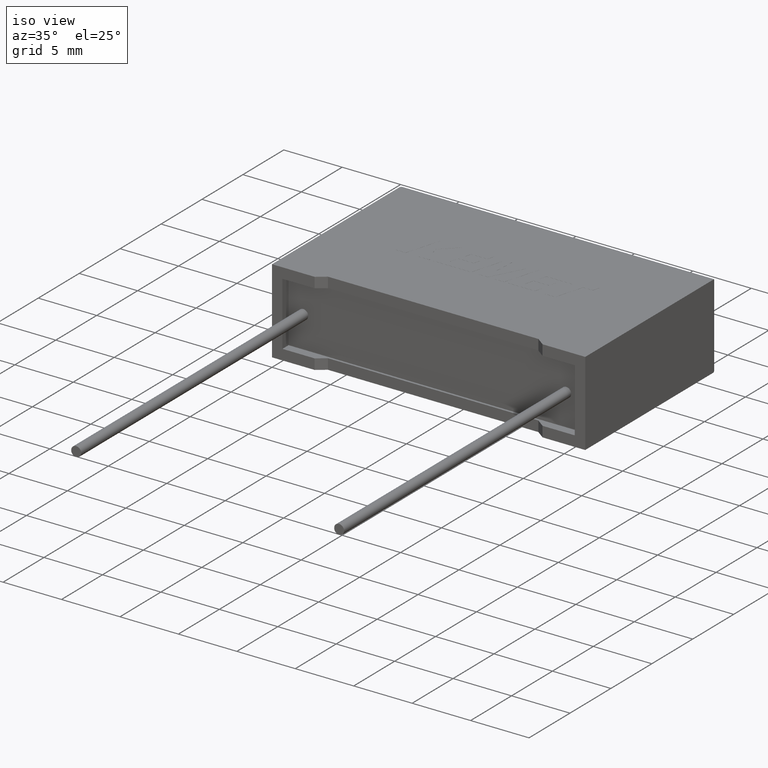
[diagram: clean part render]
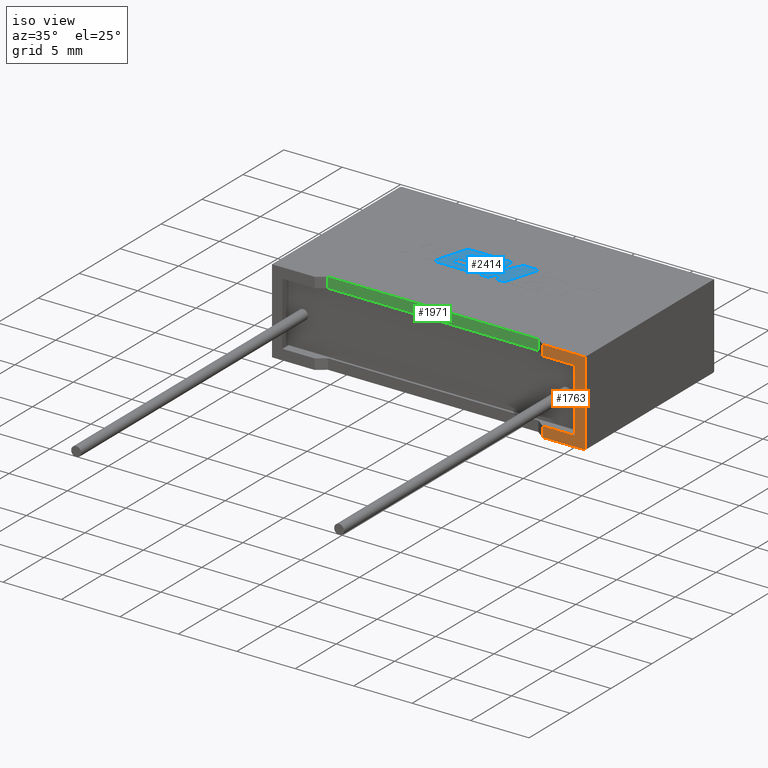
[diagram: same view with three faces highlighted in distinct colors, each labeled with its STEP entity id]
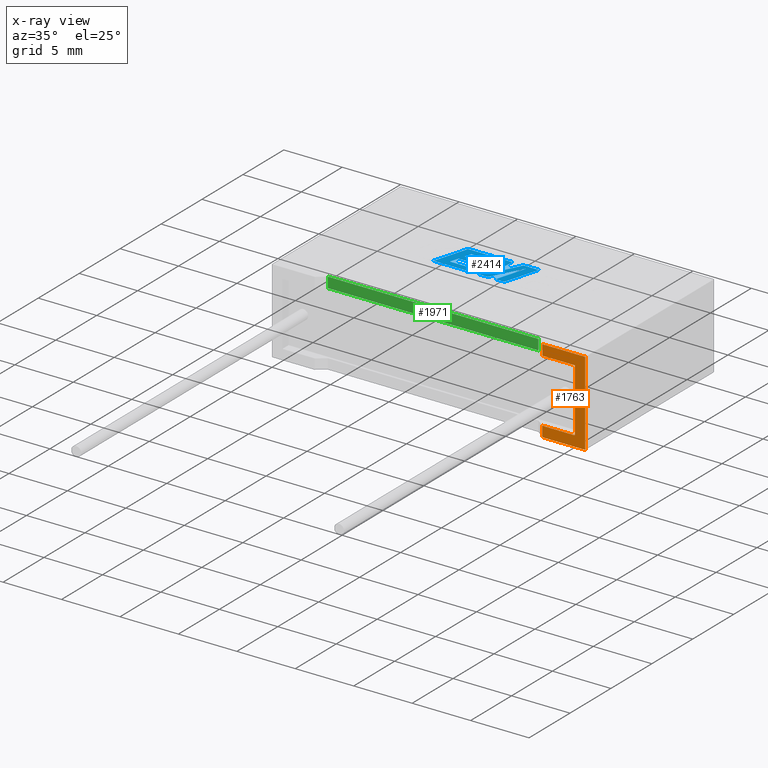
[diagram: x-ray of the same camera — body ghosted, the three highlighted faces saturated]
A machine part, iso view with three faces highlighted in distinct colors.
The next image is the same camera in x-ray (body ghosted, the three faces saturated) — at least one of them is partly hidden behind the body in this view.
Their STEP definitions:

[orange] entity #1763 — the highlighted planar face has unit normal (0, 1, 0).
#8 = VERTEX_POINT ( 'NONE', #1206 ) ;
#26 = EDGE_CURVE ( 'NONE', #1050, #2748, #1887, .T. ) ;
#30 = ORIENTED_EDGE ( 'NONE', *, *, #637, .F. ) ;
#57 = DIRECTION ( 'NONE',  ( 0.000000000000000000, -0.000000000000000000, 1.000000000000000000 ) ) ;
#79 = VERTEX_POINT ( 'NONE', #1142 ) ;
#97 = ORIENTED_EDGE ( 'NONE', *, *, #1270, .F. ) ;
#144 = DIRECTION ( 'NONE',  ( -0.000000000000000000, -0.000000000000000000, 1.000000000000000000 ) ) ;
#149 = DIRECTION ( 'NONE',  ( -1.000000000000000000, 0.000000000000000000, -1.387039016726486021E-16 ) ) ;
#192 = VERTEX_POINT ( 'NONE', #2314 ) ;
#218 = LINE ( 'NONE', #2124, #976 ) ;
#257 = CARTESIAN_POINT ( 'NONE',  ( 26.80000000000000071, 0.000000000000000000, 7.200000000000000178 ) ) ;
#387 = CARTESIAN_POINT ( 'NONE',  ( 23.15000000000000213, 2.234980408443919708E-16, 0.000000000000000000 ) ) ;
#392 = LINE ( 'NONE', #1340, #2062 ) ;
#403 = DIRECTION ( 'NONE',  ( 0.000000000000000000, 0.000000000000000000, 1.000000000000000000 ) ) ;
#488 = FACE_OUTER_BOUND ( 'NONE', #2459, .T. ) ;
#513 = LINE ( 'NONE', #1962, #1749 ) ;
#542 = LINE ( 'NONE', #1722, #2899 ) ;
#547 = EDGE_CURVE ( 'NONE', #192, #8, #542, .T. ) ;
#637 = EDGE_CURVE ( 'NONE', #1050, #79, #1539, .T. ) ;
#774 = CARTESIAN_POINT ( 'NONE',  ( 0.000000000000000000, 0.000000000000000000, 7.200000000000000178 ) ) ;
#845 = CARTESIAN_POINT ( 'NONE',  ( 26.80000000000000071, 0.000000000000000000, 7.200000000000000178 ) ) ;
#908 = ORIENTED_EDGE ( 'NONE', *, *, #2807, .F. ) ;
#976 = VECTOR ( 'NONE', #3060, 1000.000000000000000 ) ;
#1020 = DIRECTION ( 'NONE',  ( -0.000000000000000000, -0.000000000000000000, 1.000000000000000000 ) ) ;
#1050 = VERTEX_POINT ( 'NONE', #1491 ) ;
#1108 = VECTOR ( 'NONE', #2218, 1000.000000000000000 ) ;
#1142 = CARTESIAN_POINT ( 'NONE',  ( 23.15000000000000213, 2.234980408443919708E-16, 0.8933332440000000263 ) ) ;
#1202 = ORIENTED_EDGE ( 'NONE', *, *, #547, .F. ) ;
#1206 = CARTESIAN_POINT ( 'NONE',  ( 23.15000000000000213, 2.234980408443919708E-16, 7.200000000000000178 ) ) ;
#1270 = EDGE_CURVE ( 'NONE', #8, #2122, #218, .T. ) ;
#1292 = ORIENTED_EDGE ( 'NONE', *, *, #1551, .F. ) ;
#1297 = VERTEX_POINT ( 'NONE', #1885 ) ;
#1340 = CARTESIAN_POINT ( 'NONE',  ( 25.90666675599999991, 0.000000000000000000, 0.8933332440000000263 ) ) ;
#1432 = PLANE ( 'NONE',  #2112 ) ;
#1491 = CARTESIAN_POINT ( 'NONE',  ( 23.15000000000000213, 2.234980408443919708E-16, 0.000000000000000000 ) ) ;
#1539 = LINE ( 'NONE', #387, #1612 ) ;
#1551 = EDGE_CURVE ( 'NONE', #2291, #192, #2512, .T. ) ;
#1574 = VECTOR ( 'NONE', #149, 1000.000000000000000 ) ;
#1612 = VECTOR ( 'NONE', #144, 1000.000000000000000 ) ;
#1651 = EDGE_CURVE ( 'NONE', #1297, #2291, #392, .T. ) ;
#1658 = VECTOR ( 'NONE', #2603, 1000.000000000000000 ) ;
#1722 = CARTESIAN_POINT ( 'NONE',  ( 23.15000000000000213, 2.234980408443919708E-16, 0.000000000000000000 ) ) ;
#1735 = ORIENTED_EDGE ( 'NONE', *, *, #26, .T. ) ;
#1749 = VECTOR ( 'NONE', #2402, 1000.000000000000000 ) ;
#1763 = ADVANCED_FACE ( 'NONE', ( #488 ), #1432, .F. ) ;
#1790 = CARTESIAN_POINT ( 'NONE',  ( 25.90666675599999991, 0.000000000000000000, 6.306666755999999374 ) ) ;
#1838 = CARTESIAN_POINT ( 'NONE',  ( 25.90666675599999991, 0.000000000000000000, 6.306666755999999374 ) ) ;
#1885 = CARTESIAN_POINT ( 'NONE',  ( 25.90666675599999991, 0.000000000000000000, 0.8933332440000000263 ) ) ;
#1887 = LINE ( 'NONE', #2300, #1658 ) ;
#1940 = ORIENTED_EDGE ( 'NONE', *, *, #1651, .F. ) ;
#1962 = CARTESIAN_POINT ( 'NONE',  ( 0.8933332440000000263, 0.000000000000000000, 0.8933332440000000263 ) ) ;
#2062 = VECTOR ( 'NONE', #403, 1000.000000000000000 ) ;
#2112 = AXIS2_PLACEMENT_3D ( 'NONE', #774, #2916, #57 ) ;
#2115 = EDGE_CURVE ( 'NONE', #79, #1297, #513, .T. ) ;
#2122 = VERTEX_POINT ( 'NONE', #257 ) ;
#2124 = CARTESIAN_POINT ( 'NONE',  ( 0.000000000000000000, 0.000000000000000000, 7.200000000000000178 ) ) ;
#2218 = DIRECTION ( 'NONE',  ( -0.000000000000000000, -0.000000000000000000, -1.000000000000000000 ) ) ;
#2251 = CARTESIAN_POINT ( 'NONE',  ( 26.80000000000000071, 0.000000000000000000, 0.000000000000000000 ) ) ;
#2257 = ORIENTED_EDGE ( 'NONE', *, *, #2115, .F. ) ;
#2291 = VERTEX_POINT ( 'NONE', #1838 ) ;
#2300 = CARTESIAN_POINT ( 'NONE',  ( 0.000000000000000000, 0.000000000000000000, 0.000000000000000000 ) ) ;
#2314 = CARTESIAN_POINT ( 'NONE',  ( 23.15000000000000213, 2.234980408443919708E-16, 6.306666755999999374 ) ) ;
#2402 = DIRECTION ( 'NONE',  ( 1.000000000000000000, 0.000000000000000000, 0.000000000000000000 ) ) ;
#2459 = EDGE_LOOP ( 'NONE', ( #30, #1735, #908, #97, #1202, #1292, #1940, #2257 ) ) ;
#2512 = LINE ( 'NONE', #1790, #1574 ) ;
#2603 = DIRECTION ( 'NONE',  ( 1.000000000000000000, 0.000000000000000000, 0.000000000000000000 ) ) ;
#2748 = VERTEX_POINT ( 'NONE', #2251 ) ;
#2807 = EDGE_CURVE ( 'NONE', #2122, #2748, #2945, .T. ) ;
#2899 = VECTOR ( 'NONE', #1020, 1000.000000000000000 ) ;
#2916 = DIRECTION ( 'NONE',  ( 0.000000000000000000, 1.000000000000000000, 0.000000000000000000 ) ) ;
#2945 = LINE ( 'NONE', #845, #1108 ) ;
#3060 = DIRECTION ( 'NONE',  ( 1.000000000000000000, 0.000000000000000000, 0.000000000000000000 ) ) ;

[blue] entity #2414 — the highlighted planar face has unit normal (0, 0, -1).
#3 = DIRECTION ( 'NONE',  ( 0.2746459304916892830, 0.9615454294334481178, 0.000000000000000000 ) ) ;
#23 = ORIENTED_EDGE ( 'NONE', *, *, #1012, .T. ) ;
#48 = VECTOR ( 'NONE', #1555, 1000.000000000000000 ) ;
#84 = ORIENTED_EDGE ( 'NONE', *, *, #243, .T. ) ;
#91 = VECTOR ( 'NONE', #1664, 1000.000000000000227 ) ;
#98 = LINE ( 'NONE', #1277, #1817 ) ;
#111 = DIRECTION ( 'NONE',  ( -1.000000000000000000, 0.000000000000000000, 0.000000000000000000 ) ) ;
#116 = DIRECTION ( 'NONE',  ( 0.000000000000000000, 0.000000000000000000, -1.000000000000000000 ) ) ;
#143 = VECTOR ( 'NONE', #3022, 1000.000000000000000 ) ;
#145 = VERTEX_POINT ( 'NONE', #689 ) ;
#176 = VERTEX_POINT ( 'NONE', #1917 ) ;
#196 = DIRECTION ( 'NONE',  ( -1.000000000000000000, 0.000000000000000000, 0.000000000000000000 ) ) ;
#203 = VERTEX_POINT ( 'NONE', #1530 ) ;
#216 = ORIENTED_EDGE ( 'NONE', *, *, #1556, .T. ) ;
#223 = LINE ( 'NONE', #1420, #377 ) ;
#233 = DIRECTION ( 'NONE',  ( -1.000000000000000000, 0.000000000000000000, 0.000000000000000000 ) ) ;
#243 = EDGE_CURVE ( 'NONE', #1690, #2970, #2304, .T. ) ;
#249 = EDGE_CURVE ( 'NONE', #2492, #1351, #2319, .T. ) ;
#296 = VERTEX_POINT ( 'NONE', #2819 ) ;
#325 = VECTOR ( 'NONE', #2838, 1000.000000000000114 ) ;
#329 = ORIENTED_EDGE ( 'NONE', *, *, #1714, .T. ) ;
#341 = ORIENTED_EDGE ( 'NONE', *, *, #1613, .T. ) ;
#353 = DIRECTION ( 'NONE',  ( -0.2762517575166416051, -0.9610853065513833560, 0.000000000000000000 ) ) ;
#366 = EDGE_CURVE ( 'NONE', #2488, #2178, #1400, .T. ) ;
#375 = CARTESIAN_POINT ( 'NONE',  ( 12.81255791745697081, 6.927829999999906896, 7.204999999999999183 ) ) ;
#377 = VECTOR ( 'NONE', #2064, 1000.000000000000227 ) ;
#378 = EDGE_CURVE ( 'NONE', #1764, #609, #223, .T. ) ;
#390 = LINE ( 'NONE', #2496, #2428 ) ;
#396 = EDGE_CURVE ( 'NONE', #1656, #2693, #2315, .T. ) ;
#436 = ORIENTED_EDGE ( 'NONE', *, *, #2565, .T. ) ;
#469 = ORIENTED_EDGE ( 'NONE', *, *, #1939, .T. ) ;
#471 = CARTESIAN_POINT ( 'NONE',  ( 13.62036788893125916, 9.929655146294752655, 7.204999999999999183 ) ) ;
#476 = EDGE_CURVE ( 'NONE', #771, #296, #2604, .T. ) ;
#518 = LINE ( 'NONE', #2897, #2551 ) ;
#523 = VERTEX_POINT ( 'NONE', #2875 ) ;
#525 = LINE ( 'NONE', #1120, #48 ) ;
#575 = VERTEX_POINT ( 'NONE', #1364 ) ;
#577 = DIRECTION ( 'NONE',  ( -1.000000000000000000, 0.000000000000000000, 0.000000000000000000 ) ) ;
#609 = VERTEX_POINT ( 'NONE', #2942 ) ;
#612 = CARTESIAN_POINT ( 'NONE',  ( 8.961130512319890329, 6.927829999999906008, 7.204999999999999183 ) ) ;
#634 = CARTESIAN_POINT ( 'NONE',  ( 13.50492627752647579, 7.785112693060707301, 7.204999999999999183 ) ) ;
#658 = CARTESIAN_POINT ( 'NONE',  ( 11.63858746193968230, 8.799934140488566925, 7.204999999999999183 ) ) ;
#662 = VERTEX_POINT ( 'NONE', #612 ) ;
#687 = VERTEX_POINT ( 'NONE', #940 ) ;
#689 = CARTESIAN_POINT ( 'NONE',  ( 11.64331543556821558, 7.498929054996248844, 7.204999999999999183 ) ) ;
#717 = CARTESIAN_POINT ( 'NONE',  ( 10.35016900896583358, 8.799934140488566925, 7.204999999999999183 ) ) ;
#771 = VERTEX_POINT ( 'NONE', #2418 ) ;
#842 = EDGE_CURVE ( 'NONE', #609, #687, #98, .T. ) ;
#847 = DIRECTION ( 'NONE',  ( 1.000000000000000000, 0.000000000000000000, 0.000000000000000000 ) ) ;
#859 = LINE ( 'NONE', #1815, #2719 ) ;
#862 = CARTESIAN_POINT ( 'NONE',  ( 9.824934949208618207, 9.929655146294752655, 7.204999999999999183 ) ) ;
#882 = LINE ( 'NONE', #2704, #952 ) ;
#926 = EDGE_CURVE ( 'NONE', #523, #145, #2302, .T. ) ;
#940 = CARTESIAN_POINT ( 'NONE',  ( 12.81255791745697081, 6.927829999999906896, 7.204999999999999183 ) ) ;
#952 = VECTOR ( 'NONE', #2500, 1000.000000000000227 ) ;
#959 = CARTESIAN_POINT ( 'NONE',  ( 8.961130512319890329, 6.927829999999906008, 7.204999999999999183 ) ) ;
#964 = CARTESIAN_POINT ( 'NONE',  ( 15.03040653937304683, 9.613145606098944640, 7.204999999999999183 ) ) ;
#967 = DIRECTION ( 'NONE',  ( 1.000000000000000000, 0.000000000000000000, 0.000000000000000000 ) ) ;
#980 = VECTOR ( 'NONE', #847, 1000.000000000000000 ) ;
#992 = CARTESIAN_POINT ( 'NONE',  ( 12.19501884341827846, 6.927829999999906896, 7.204999999999999183 ) ) ;
#1012 = EDGE_CURVE ( 'NONE', #176, #1656, #2399, .T. ) ;
#1024 = CARTESIAN_POINT ( 'NONE',  ( 13.62036788893125916, 9.929655146294752655, 7.204999999999999183 ) ) ;
#1037 = LINE ( 'NONE', #2928, #1333 ) ;
#1045 = ORIENTED_EDGE ( 'NONE', *, *, #842, .T. ) ;
#1072 = ORIENTED_EDGE ( 'NONE', *, *, #2854, .T. ) ;
#1120 = CARTESIAN_POINT ( 'NONE',  ( 11.64331543556821558, 7.498929054996248844, 7.204999999999999183 ) ) ;
#1144 = CARTESIAN_POINT ( 'NONE',  ( 13.50492627752647579, 7.785112693060707301, 7.204999999999999183 ) ) ;
#1263 = ORIENTED_EDGE ( 'NONE', *, *, #476, .T. ) ;
#1277 = CARTESIAN_POINT ( 'NONE',  ( 12.96235618644490373, 9.600276025354885334, 7.204999999999999183 ) ) ;
#1278 = DIRECTION ( 'NONE',  ( 0.2740217765954066076, 0.9617234872620595842, 0.000000000000000000 ) ) ;
#1285 = CARTESIAN_POINT ( 'NONE',  ( -0.3258222201975285448, -2.788102143479581407, 7.204999999999999183 ) ) ;
#1323 = CARTESIAN_POINT ( 'NONE',  ( 12.04258276915566839, 9.929655146294752655, 7.204999999999999183 ) ) ;
#1333 = VECTOR ( 'NONE', #2419, 1000.000000000000000 ) ;
#1351 = VERTEX_POINT ( 'NONE', #717 ) ;
#1363 = EDGE_CURVE ( 'NONE', #2970, #1848, #2313, .T. ) ;
#1364 = CARTESIAN_POINT ( 'NONE',  ( 10.51263605673751833, 9.358273143074805844, 7.204999999999999183 ) ) ;
#1381 = ORIENTED_EDGE ( 'NONE', *, *, #396, .T. ) ;
#1400 = LINE ( 'NONE', #2334, #2842 ) ;
#1406 = CARTESIAN_POINT ( 'NONE',  ( 9.979269517209649720, 7.498929054996248844, 7.204999999999999183 ) ) ;
#1410 = CARTESIAN_POINT ( 'NONE',  ( 15.88512924842837215, 9.929655146294752655, 7.204999999999999183 ) ) ;
#1420 = CARTESIAN_POINT ( 'NONE',  ( 12.19501884341827846, 6.927829999999906896, 7.204999999999999183 ) ) ;
#1422 = FACE_OUTER_BOUND ( 'NONE', #2696, .T. ) ;
#1450 = LINE ( 'NONE', #471, #2629 ) ;
#1459 = VECTOR ( 'NONE', #111, 1000.000000000000000 ) ;
#1471 = ORIENTED_EDGE ( 'NONE', *, *, #1936, .T. ) ;
#1528 = CARTESIAN_POINT ( 'NONE',  ( 14.25927221365804698, 6.927829999999906896, 7.204999999999999183 ) ) ;
#1530 = CARTESIAN_POINT ( 'NONE',  ( 15.02208238501568971, 6.927829999999906896, 7.204999999999999183 ) ) ;
#1537 = ORIENTED_EDGE ( 'NONE', *, *, #1795, .T. ) ;
#1538 = EDGE_CURVE ( 'NONE', #145, #2997, #525, .T. ) ;
#1540 = VERTEX_POINT ( 'NONE', #862 ) ;
#1555 = DIRECTION ( 'NONE',  ( -1.000000000000000000, 0.000000000000000000, 0.000000000000000000 ) ) ;
#1556 = EDGE_CURVE ( 'NONE', #687, #1690, #2484, .T. ) ;
#1590 = LINE ( 'NONE', #1857, #1598 ) ;
#1598 = VECTOR ( 'NONE', #3, 1000.000000000000114 ) ;
#1613 = EDGE_CURVE ( 'NONE', #1848, #203, #2263, .T. ) ;
#1618 = VECTOR ( 'NONE', #2632, 999.9999999999998863 ) ;
#1620 = VECTOR ( 'NONE', #2745, 1000.000000000000000 ) ;
#1654 = CARTESIAN_POINT ( 'NONE',  ( 10.35016900896583358, 8.799934140488566925, 7.204999999999999183 ) ) ;
#1656 = VERTEX_POINT ( 'NONE', #634 ) ;
#1664 = DIRECTION ( 'NONE',  ( -0.2760118818968580467, -0.9611542233438683525, 0.000000000000000000 ) ) ;
#1690 = VERTEX_POINT ( 'NONE', #2002 ) ;
#1714 = EDGE_CURVE ( 'NONE', #662, #1764, #2071, .T. ) ;
#1764 = VERTEX_POINT ( 'NONE', #992 ) ;
#1771 = ORIENTED_EDGE ( 'NONE', *, *, #249, .T. ) ;
#1795 = EDGE_CURVE ( 'NONE', #2997, #771, #518, .T. ) ;
#1807 = EDGE_CURVE ( 'NONE', #2597, #176, #1037, .T. ) ;
#1815 = CARTESIAN_POINT ( 'NONE',  ( 15.02208238501568971, 6.927829999999906896, 7.204999999999999183 ) ) ;
#1817 = VECTOR ( 'NONE', #3029, 1000.000000000000114 ) ;
#1824 = ORIENTED_EDGE ( 'NONE', *, *, #2879, .T. ) ;
#1837 = CARTESIAN_POINT ( 'NONE',  ( 12.34199675988504730, 9.929655146294752655, 7.204999999999999183 ) ) ;
#1848 = VERTEX_POINT ( 'NONE', #1528 ) ;
#1857 = CARTESIAN_POINT ( 'NONE',  ( 11.48008168937758633, 8.244999644015067020, 7.204999999999999183 ) ) ;
#1859 = DIRECTION ( 'NONE',  ( 0.2793947940878294123, 0.9601763114327593884, 0.000000000000000000 ) ) ;
#1917 = CARTESIAN_POINT ( 'NONE',  ( 14.56854915550671947, 9.929655146294752655, 7.204999999999999183 ) ) ;
#1923 = CARTESIAN_POINT ( 'NONE',  ( 12.04258276915566839, 9.929655146294752655, 7.204999999999999183 ) ) ;
#1936 = EDGE_CURVE ( 'NONE', #203, #2597, #859, .T. ) ;
#1939 = EDGE_CURVE ( 'NONE', #1351, #575, #2539, .T. ) ;
#1974 = PLANE ( 'NONE',  #2273 ) ;
#2002 = CARTESIAN_POINT ( 'NONE',  ( 13.61281765606143246, 6.927829999999906896, 7.204999999999999183 ) ) ;
#2054 = DIRECTION ( 'NONE',  ( 1.000000000000000000, 0.000000000000000000, 0.000000000000000000 ) ) ;
#2064 = DIRECTION ( 'NONE',  ( 0.2759782365590697228, 0.9611638845408966292, 0.000000000000000000 ) ) ;
#2071 = LINE ( 'NONE', #959, #143 ) ;
#2078 = DIRECTION ( 'NONE',  ( 0.05375259206908576670, 0.9985542843760946141, 0.000000000000000000 ) ) ;
#2093 = ORIENTED_EDGE ( 'NONE', *, *, #378, .T. ) ;
#2107 = VECTOR ( 'NONE', #353, 1000.000000000000114 ) ;
#2178 = VERTEX_POINT ( 'NONE', #1923 ) ;
#2226 = VECTOR ( 'NONE', #1859, 1000.000000000000114 ) ;
#2263 = LINE ( 'NONE', #2731, #1620 ) ;
#2273 = AXIS2_PLACEMENT_3D ( 'NONE', #1285, #116, #577 ) ;
#2281 = DIRECTION ( 'NONE',  ( 0.2732148821746286371, 0.9619530280415482526, 0.000000000000000000 ) ) ;
#2288 = CARTESIAN_POINT ( 'NONE',  ( 15.03040653937304683, 9.613145606098944640, 7.204999999999999183 ) ) ;
#2293 = CARTESIAN_POINT ( 'NONE',  ( 11.63858746193968230, 8.799934140488566925, 7.204999999999999183 ) ) ;
#2295 = EDGE_CURVE ( 'NONE', #296, #2492, #1590, .T. ) ;
#2302 = LINE ( 'NONE', #1837, #2107 ) ;
#2304 = LINE ( 'NONE', #2768, #325 ) ;
#2313 = LINE ( 'NONE', #964, #91 ) ;
#2315 = LINE ( 'NONE', #1144, #2736 ) ;
#2319 = LINE ( 'NONE', #658, #2640 ) ;
#2334 = CARTESIAN_POINT ( 'NONE',  ( 11.88029826862837446, 9.358273143074805844, 7.204999999999999183 ) ) ;
#2365 = CARTESIAN_POINT ( 'NONE',  ( 10.19184578364829008, 8.244999644015067020, 7.204999999999999183 ) ) ;
#2399 = LINE ( 'NONE', #2648, #1618 ) ;
#2414 = ADVANCED_FACE ( 'NONE', ( #1422 ), #1974, .F. ) ;
#2418 = CARTESIAN_POINT ( 'NONE',  ( 10.19184578364829008, 8.244999644015067020, 7.204999999999999183 ) ) ;
#2419 = DIRECTION ( 'NONE',  ( -1.000000000000000000, 0.000000000000000000, 0.000000000000000000 ) ) ;
#2428 = VECTOR ( 'NONE', #2054, 1000.000000000000000 ) ;
#2447 = ORIENTED_EDGE ( 'NONE', *, *, #2523, .T. ) ;
#2484 = LINE ( 'NONE', #375, #980 ) ;
#2488 = VERTEX_POINT ( 'NONE', #2758 ) ;
#2492 = VERTEX_POINT ( 'NONE', #2293 ) ;
#2496 = CARTESIAN_POINT ( 'NONE',  ( 10.51263605673751833, 9.358273143074805844, 7.204999999999999183 ) ) ;
#2500 = DIRECTION ( 'NONE',  ( -0.2765379750249962743, -0.9610029908221277006, 0.000000000000000000 ) ) ;
#2523 = EDGE_CURVE ( 'NONE', #1540, #662, #882, .T. ) ;
#2539 = LINE ( 'NONE', #1654, #2226 ) ;
#2551 = VECTOR ( 'NONE', #1278, 1000.000000000000227 ) ;
#2562 = ORIENTED_EDGE ( 'NONE', *, *, #926, .T. ) ;
#2565 = EDGE_CURVE ( 'NONE', #2693, #523, #1450, .T. ) ;
#2572 = DIRECTION ( 'NONE',  ( 0.2763139702539113562, 0.9610674221107073922, 0.000000000000000000 ) ) ;
#2597 = VERTEX_POINT ( 'NONE', #1410 ) ;
#2604 = LINE ( 'NONE', #2365, #3002 ) ;
#2629 = VECTOR ( 'NONE', #233, 1000.000000000000000 ) ;
#2632 = DIRECTION ( 'NONE',  ( -0.4443210308329519354, -0.8958676361826802825, 0.000000000000000000 ) ) ;
#2640 = VECTOR ( 'NONE', #196, 1000.000000000000000 ) ;
#2642 = ORIENTED_EDGE ( 'NONE', *, *, #2295, .T. ) ;
#2648 = CARTESIAN_POINT ( 'NONE',  ( 14.56854915550671947, 9.929655146294752655, 7.204999999999999183 ) ) ;
#2676 = ORIENTED_EDGE ( 'NONE', *, *, #366, .T. ) ;
#2693 = VERTEX_POINT ( 'NONE', #1024 ) ;
#2696 = EDGE_LOOP ( 'NONE', ( #2759, #23, #1381, #436, #2562, #3020, #1537, #1263, #2642, #1771, #469, #1824, #2676, #1072, #2447, #329, #2093, #1045, #216, #84, #2909, #341, #1471 ) ) ;
#2704 = CARTESIAN_POINT ( 'NONE',  ( 9.824934949208618207, 9.929655146294752655, 7.204999999999999183 ) ) ;
#2719 = VECTOR ( 'NONE', #2572, 1000.000000000000000 ) ;
#2731 = CARTESIAN_POINT ( 'NONE',  ( 14.25927221365804698, 6.927829999999906896, 7.204999999999999183 ) ) ;
#2736 = VECTOR ( 'NONE', #2078, 1000.000000000000000 ) ;
#2741 = LINE ( 'NONE', #1323, #1459 ) ;
#2745 = DIRECTION ( 'NONE',  ( 1.000000000000000000, 0.000000000000000000, 0.000000000000000000 ) ) ;
#2758 = CARTESIAN_POINT ( 'NONE',  ( 11.88029826862837446, 9.358273143074805844, 7.204999999999999183 ) ) ;
#2759 = ORIENTED_EDGE ( 'NONE', *, *, #1807, .T. ) ;
#2768 = CARTESIAN_POINT ( 'NONE',  ( 13.61281765606143246, 6.927829999999906896, 7.204999999999999183 ) ) ;
#2819 = CARTESIAN_POINT ( 'NONE',  ( 11.48008168937758633, 8.244999644015067020, 7.204999999999999183 ) ) ;
#2838 = DIRECTION ( 'NONE',  ( 0.4668459304955080991, 0.8843386665637680277, 0.000000000000000000 ) ) ;
#2842 = VECTOR ( 'NONE', #2281, 1000.000000000000114 ) ;
#2854 = EDGE_CURVE ( 'NONE', #2178, #1540, #2741, .T. ) ;
#2875 = CARTESIAN_POINT ( 'NONE',  ( 12.34199675988504730, 9.929655146294752655, 7.204999999999999183 ) ) ;
#2879 = EDGE_CURVE ( 'NONE', #575, #2488, #390, .T. ) ;
#2897 = CARTESIAN_POINT ( 'NONE',  ( 9.979269517209649720, 7.498929054996248844, 7.204999999999999183 ) ) ;
#2909 = ORIENTED_EDGE ( 'NONE', *, *, #1363, .T. ) ;
#2928 = CARTESIAN_POINT ( 'NONE',  ( 15.88512924842837215, 9.929655146294752655, 7.204999999999999183 ) ) ;
#2942 = CARTESIAN_POINT ( 'NONE',  ( 12.96235618644490373, 9.600276025354885334, 7.204999999999999183 ) ) ;
#2970 = VERTEX_POINT ( 'NONE', #2288 ) ;
#2997 = VERTEX_POINT ( 'NONE', #1406 ) ;
#3002 = VECTOR ( 'NONE', #967, 1000.000000000000000 ) ;
#3020 = ORIENTED_EDGE ( 'NONE', *, *, #1538, .T. ) ;
#3022 = DIRECTION ( 'NONE',  ( 1.000000000000000000, 4.783739767952858963E-16, 0.000000000000000000 ) ) ;
#3029 = DIRECTION ( 'NONE',  ( -0.05596501978069368805, -0.9984327301130239141, 0.000000000000000000 ) ) ;

[green] entity #1971 — the highlighted planar face has unit normal (-0, 1, 0).
#125 = LINE ( 'NONE', #2231, #1768 ) ;
#242 = DIRECTION ( 'NONE',  ( -0.000000000000000000, -0.000000000000000000, 1.000000000000000000 ) ) ;
#269 = DIRECTION ( 'NONE',  ( -1.000000000000000000, -1.203898050721187540E-16, -1.387039016726486021E-16 ) ) ;
#402 = VERTEX_POINT ( 'NONE', #915 ) ;
#461 = EDGE_CURVE ( 'NONE', #2307, #1482, #1668, .T. ) ;
#466 = PLANE ( 'NONE',  #558 ) ;
#549 = CARTESIAN_POINT ( 'NONE',  ( 4.394236000000001141, 0.5551279999999996217, 0.000000000000000000 ) ) ;
#558 = AXIS2_PLACEMENT_3D ( 'NONE', #1426, #679, #1889 ) ;
#570 = ORIENTED_EDGE ( 'NONE', *, *, #461, .T. ) ;
#679 = DIRECTION ( 'NONE',  ( -1.203898050721187540E-16, 1.000000000000000000, 0.000000000000000000 ) ) ;
#898 = EDGE_CURVE ( 'NONE', #1482, #1797, #125, .T. ) ;
#915 = CARTESIAN_POINT ( 'NONE',  ( 4.394236000000001141, 0.5551279999999996217, 6.306666755999997598 ) ) ;
#1042 = LINE ( 'NONE', #549, #1458 ) ;
#1207 = DIRECTION ( 'NONE',  ( -0.000000000000000000, -0.000000000000000000, 1.000000000000000000 ) ) ;
#1349 = EDGE_CURVE ( 'NONE', #2307, #402, #1647, .T. ) ;
#1402 = CARTESIAN_POINT ( 'NONE',  ( 22.40576400000000135, 0.5551279999999996217, 6.306666755999999374 ) ) ;
#1426 = CARTESIAN_POINT ( 'NONE',  ( 13.40000000000000036, 0.5551280000000006210, 0.000000000000000000 ) ) ;
#1458 = VECTOR ( 'NONE', #242, 1000.000000000000000 ) ;
#1482 = VERTEX_POINT ( 'NONE', #1931 ) ;
#1619 = CARTESIAN_POINT ( 'NONE',  ( 25.90666675599999991, 0.5551280000000021753, 6.306666755999999374 ) ) ;
#1647 = LINE ( 'NONE', #1619, #1776 ) ;
#1668 = LINE ( 'NONE', #2220, #2051 ) ;
#1768 = VECTOR ( 'NONE', #1982, 1000.000000000000000 ) ;
#1776 = VECTOR ( 'NONE', #269, 1000.000000000000000 ) ;
#1797 = VERTEX_POINT ( 'NONE', #2655 ) ;
#1889 = DIRECTION ( 'NONE',  ( -1.000000000000000000, -1.203898050721187540E-16, 0.000000000000000000 ) ) ;
#1931 = CARTESIAN_POINT ( 'NONE',  ( 22.40576400000000135, 0.5551279999999996217, 7.200000000000000178 ) ) ;
#1971 = ADVANCED_FACE ( 'NONE', ( #3007 ), #466, .F. ) ;
#1982 = DIRECTION ( 'NONE',  ( -1.000000000000000000, -1.203898050721187540E-16, 0.000000000000000000 ) ) ;
#2032 = ORIENTED_EDGE ( 'NONE', *, *, #2411, .F. ) ;
#2051 = VECTOR ( 'NONE', #1207, 1000.000000000000000 ) ;
#2190 = ORIENTED_EDGE ( 'NONE', *, *, #898, .T. ) ;
#2220 = CARTESIAN_POINT ( 'NONE',  ( 22.40576400000000135, 0.5551279999999996217, 0.000000000000000000 ) ) ;
#2231 = CARTESIAN_POINT ( 'NONE',  ( 13.40000000000000036, 0.5551280000000006210, 7.200000000000000178 ) ) ;
#2307 = VERTEX_POINT ( 'NONE', #1402 ) ;
#2411 = EDGE_CURVE ( 'NONE', #402, #1797, #1042, .T. ) ;
#2622 = EDGE_LOOP ( 'NONE', ( #2808, #570, #2190, #2032 ) ) ;
#2655 = CARTESIAN_POINT ( 'NONE',  ( 4.394236000000001141, 0.5551279999999996217, 7.200000000000000178 ) ) ;
#2808 = ORIENTED_EDGE ( 'NONE', *, *, #1349, .F. ) ;
#3007 = FACE_OUTER_BOUND ( 'NONE', #2622, .T. ) ;